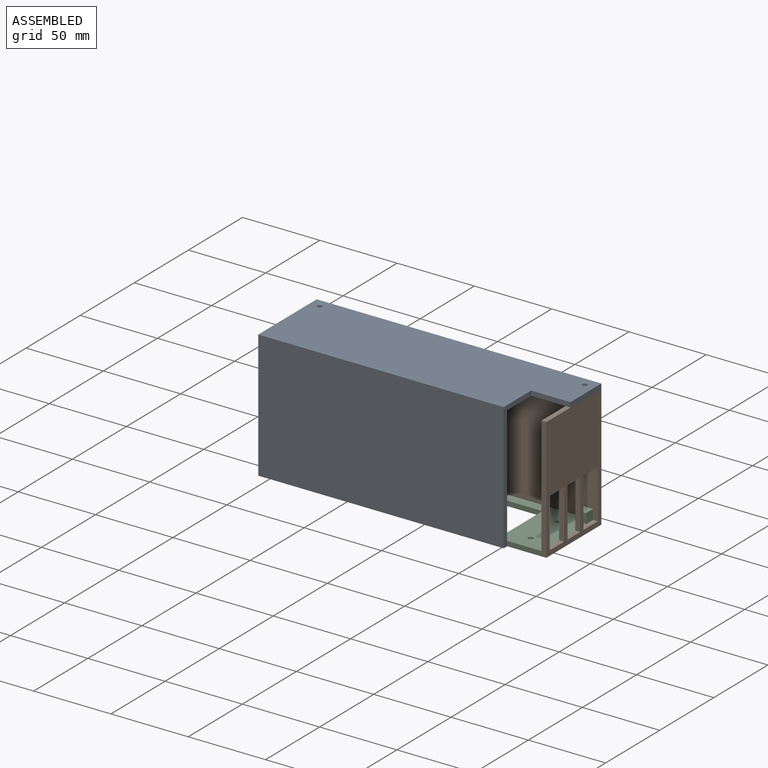
[diagram: assembled view]
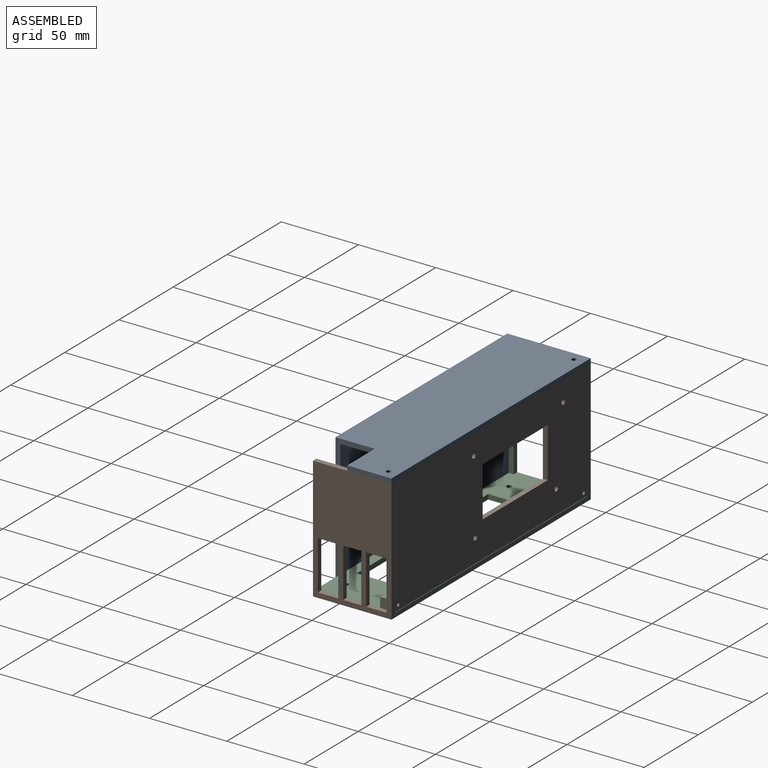
[diagram: assembled view, second angle]
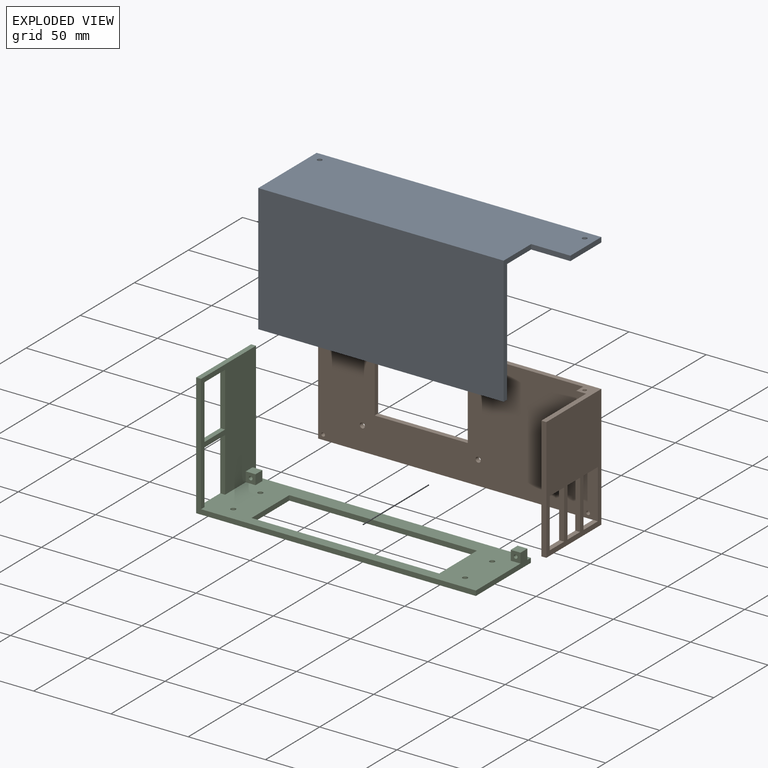
[diagram: exploded view]
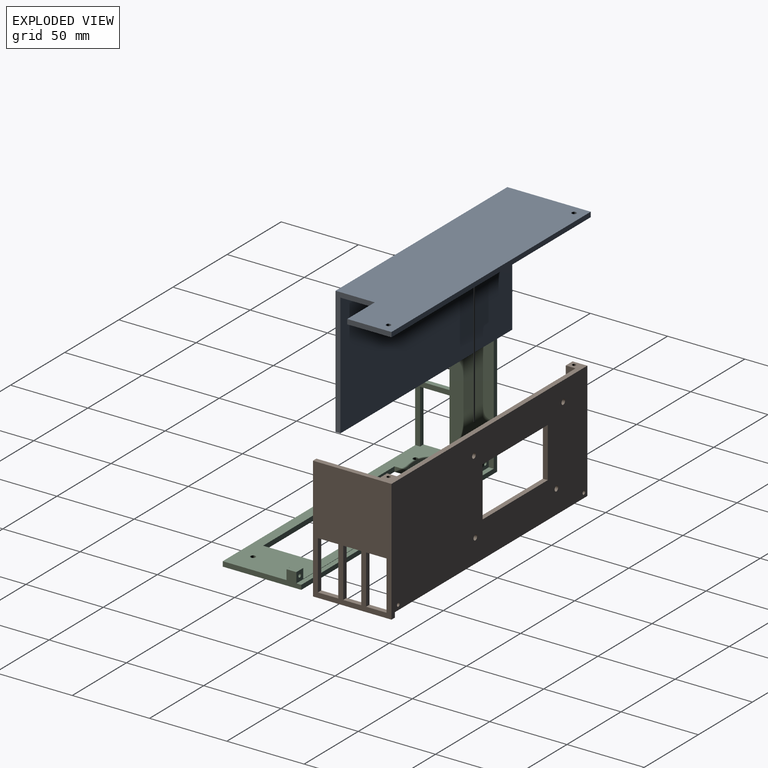
[diagram: exploded view, second angle]
ASSEMBLY  parts=3 mates=5
PART A: 12 faces, bbox 184.2x54x82.6 mm
  f0: plane 28.58x3.18mm, normal (1,0,0), area 90.7mm2, adj f2,f3,f4,f9
  f1: plane 158.75x82.55mm, normal (0,-1,0), area 13104.8mm2, adj f2,f5,f8,f11
  f2: plane 184.15x53.98mm, normal (0,0,1), area 9280.2mm2, adj f0,f1,f4,f5,f6,f7,f8,f9
  f3: plane 184.15x50.8mm, normal (0,0,-1), area 8776.2mm2, adj f0,f4,f5,f6,f7,f8,f9,f10
  f4: plane 184.15x3.18mm, normal (0,1,0), area 584.7mm2, adj f0,f2,f3,f5
  f5: plane 82.55x53.98mm, normal (-1,0,0), area 423.4mm2, adj f1,f2,f3,f4,f10,f11
  f6: cylinder r=1.5mm len=3.18mm, axis (0,0,1), area 29.9mm2, adj f2,f3
  f7: cylinder r=1.5mm len=3.18mm, axis (0,0,1), area 29.9mm2, adj f2,f3
  f8: plane 82.55x25.4mm, normal (1,0,0), area 332.7mm2, adj f1,f2,f3,f9,f10,f11
  f9: plane 25.4x3.18mm, normal (0,-1,0), area 80.6mm2, adj f0,f2,f3,f8
  f10: plane 158.75x79.38mm, normal (0,1,0), area 12600.8mm2, adj f3,f5,f8,f11
  f11: plane 158.75x3.18mm, normal (0,0,-1), area 504mm2, adj f1,f5,f8,f10
PART B: 38 faces, bbox 181x50.8x79.4 mm
  f0: plane 50.8x3.18mm, normal (0,0,-1), area 161.3mm2, adj f5,f6,f7,f9
  f1: plane 180.98x50.8mm, normal (0,0,1), area 797.4mm2, adj f5,f6,f7,f8,f9,f22,f24,f25
  f2: plane 13.23x3.18mm, normal (0,0,1), area 42mm2, adj f6,f7,f8,f20
  f3: plane 11.64x3.18mm, normal (0,0,1), area 37mm2, adj f6,f7,f14,f16
  f4: plane 13.23x3.18mm, normal (0,0,1), area 42mm2, adj f6,f7,f17,f19
  f5: plane 180.98x79.38mm, normal (0,1,0), area 11815.1mm2, adj f0,f1,f6,f7,f10,f11,f12,f13
  f6: plane 79.38x50.8mm, normal (1,0,0), area 2822.6mm2, adj f0,f1,f2,f3,f4,f5,f8,f9
  f7: plane 79.38x50.8mm, normal (-1,0,0), area 2540.3mm2, adj f0,f1,f2,f3,f4,f5,f8,f9
  f8: plane 180.98x76.2mm, normal (0,-1,0), area 11583.2mm2, adj f1,f2,f6,f7,f10,f11,f12,f13
  f9: plane 79.38x3.18mm, normal (0,-1,0), area 252mm2, adj f0,f1,f6,f7
  f10: cylinder r=1.65mm len=3.3mm, axis (0,-1,0), area 32.9mm2, adj f5,f8
  f11: cylinder r=1.65mm len=3.3mm, axis (0,-1,0), area 32.9mm2, adj f5,f8
  f12: cylinder r=1.65mm len=3.3mm, axis (0,-1,0), area 32.9mm2, adj f5,f8
  f13: cylinder r=1.65mm len=3.3mm, axis (0,-1,0), area 32.9mm2, adj f5,f8
  f14: plane 31.75x3.18mm, normal (0,1,0), area 100.8mm2, adj f3,f6,f7,f15
  f15: plane 11.64x3.18mm, normal (0,0,-1), area 37mm2, adj f6,f7,f14,f16
  f16: plane 31.75x3.18mm, normal (0,-1,0), area 100.8mm2, adj f3,f6,f7,f15
  f17: plane 31.75x3.18mm, normal (0,1,0), area 100.8mm2, adj f4,f6,f7,f18
  f18: plane 13.23x3.18mm, normal (0,0,-1), area 42mm2, adj f6,f7,f17,f19
  f19: plane 31.75x3.18mm, normal (0,-1,0), area 100.8mm2, adj f4,f6,f7,f18
  f20: plane 31.75x3.18mm, normal (0,1,0), area 100.8mm2, adj f2,f6,f7,f21
  f21: plane 13.23x3.18mm, normal (0,0,-1), area 42mm2, adj f6,f7,f8,f20
  f22: plane 6.35x6.35mm, normal (1,0,0), area 40.3mm2, adj f1,f8,f23,f24
  f23: plane 6.35x6.35mm, normal (0,0,-1), area 35.8mm2, adj f8,f22,f24,f28,f35
  f24: plane 6.35x6.35mm, normal (0,-1,0), area 40.3mm2, adj f1,f22,f23,f35
  f25: plane 6.35x6.35mm, normal (-1,0,0), area 40.3mm2, adj f1,f8,f26,f27
  f26: plane 6.35x6.35mm, normal (0,0,-1), area 35.8mm2, adj f7,f8,f25,f27,f29
  f27: plane 6.35x6.35mm, normal (0,-1,0), area 40.3mm2, adj f1,f7,f25,f26
  f28: cylinder r=1.2mm len=6.35mm, axis (0,0,1), area 47.9mm2, adj f1,f23
  f29: cylinder r=1.2mm len=6.35mm, axis (0,0,1), area 47.9mm2, adj f1,f26
  f30: plane 32.26x3.18mm, normal (1,0,0), area 102.4mm2, adj f5,f8,f31,f33
  f31: plane 60.2x3.18mm, normal (0,0,1), area 191.1mm2, adj f5,f8,f30,f32
  f32: plane 32.26x3.18mm, normal (-1,0,0), area 102.4mm2, adj f5,f8,f31,f33
  f33: plane 60.2x3.18mm, normal (0,0,-1), area 191.1mm2, adj f5,f8,f30,f32
  f34: plane 177.8x3.18mm, normal (0,0,-1), area 564.5mm2, adj f5,f7,f8,f35
  f35: plane 76.2x9.53mm, normal (-1,0,0), area 282.3mm2, adj f1,f5,f8,f23,f24,f34
  f36: cylinder r=1.2mm len=3.18mm, axis (0,-1,0), area 23.9mm2, adj f5,f8
  f37: cylinder r=1.2mm len=3.18mm, axis (0,-1,0), area 23.9mm2, adj f5,f8
PART C: 33 faces, bbox 181x50.8x79.4 mm
  f0: plane 6.35x6.35mm, normal (0,0,1), area 40.3mm2, adj f3,f6,f30,f32
  f1: plane 180.98x47.63mm, normal (0,0,1), area 4175.5mm2, adj f2,f3,f6,f7,f9,f11,f12,f13
  f2: plane 6.35x6.35mm, normal (-1,0,0), area 40.3mm2, adj f1,f28,f29,f32
  f3: plane 6.35x6.35mm, normal (1,0,0), area 40.3mm2, adj f0,f1,f30,f32
  f4: cylinder r=1.2mm len=6.35mm, axis (0,1,0), area 47.9mm2, adj f30,f32
  f5: cylinder r=1.2mm len=6.35mm, axis (0,1,0), area 47.9mm2, adj f29,f32
  f6: plane 76.44x50.8mm, normal (1,0,0), area 2500.8mm2, adj f0,f1,f7,f10,f15,f16,f17,f18
  f7: plane 180.98x79.38mm, normal (0,-1,0), area 816.5mm2, adj f1,f6,f8,f9,f15,f27
  f8: plane 180.98x50.8mm, normal (0,0,-1), area 4921.5mm2, adj f7,f9,f10,f11,f12,f13,f14,f23
  f9: plane 79.38x50.8mm, normal (-1,0,0), area 2701.6mm2, adj f1,f7,f8,f10,f15,f16,f17,f18
  f10: plane 180.98x79.38mm, normal (0,1,0), area 773.1mm2, adj f6,f8,f9,f15,f27,f31
  f11: cylinder r=1.6mm len=3.2mm, axis (0,0,1), area 31.9mm2, adj f1,f8
  f12: cylinder r=1.6mm len=3.2mm, axis (0,0,1), area 31.9mm2, adj f1,f8
  f13: cylinder r=1.6mm len=3.2mm, axis (0,0,1), area 31.9mm2, adj f1,f8
  f14: cylinder r=1.6mm len=3.2mm, axis (0,0,1), area 31.9mm2, adj f1,f8
  f15: plane 50.8x3.18mm, normal (0,0,1), area 161.3mm2, adj f6,f7,f9,f10
  f16: plane 34.93x3.18mm, normal (0,1,0), area 110.9mm2, adj f1,f6,f9,f18
  f17: plane 34.93x3.18mm, normal (0,-1,0), area 110.9mm2, adj f1,f6,f9,f18
  f18: plane 19.05x3.18mm, normal (0,0,-1), area 60.5mm2, adj f6,f9,f16,f17
  f19: plane 34.93x3.18mm, normal (0,-1,0), area 110.9mm2, adj f6,f9,f20,f22
  f20: plane 19.05x3.18mm, normal (0,0,1), area 60.5mm2, adj f6,f9,f19,f21
  f21: plane 34.93x3.18mm, normal (0,1,0), area 110.9mm2, adj f6,f9,f20,f22
  f22: plane 19.05x3.18mm, normal (0,0,-1), area 60.5mm2, adj f6,f9,f19,f21
  f23: plane 121.4x3.18mm, normal (0,-1,0), area 385.4mm2, adj f1,f8,f24,f26
  f24: plane 34.93x3.18mm, normal (1,0,0), area 110.9mm2, adj f1,f8,f23,f25
  f25: plane 121.4x3.18mm, normal (0,1,0), area 385.4mm2, adj f1,f8,f24,f26
  f26: plane 34.93x3.18mm, normal (-1,0,0), area 110.9mm2, adj f1,f8,f23,f25
  f27: plane 50.8x9.53mm, normal (1,0,0), area 200.8mm2, adj f1,f7,f8,f10,f28,f29,f31,f32
  f28: plane 6.35x6.35mm, normal (0,0,1), area 40.3mm2, adj f2,f27,f29,f32
  f29: plane 6.35x6.35mm, normal (0,-1,0), area 35.8mm2, adj f1,f2,f5,f27,f28
  f30: plane 6.35x6.35mm, normal (0,-1,0), area 35.8mm2, adj f0,f1,f3,f4,f6
  f31: plane 177.8x3.18mm, normal (0,0,1), area 564.5mm2, adj f6,f10,f27,f32
  f32: plane 177.8x6.59mm, normal (0,1,0), area 115mm2, adj f0,f1,f2,f3,f4,f5,f6,f27
PLACE A t=(30.64,-16.04,88.68)mm
PLACE B t=(-57.54,12.54,9.3)mm
PLACE C t=(-57.54,12.54,9.3)mm
MATE planar C.f10 <-> B.f5  axis (0,1,0) through (-90.93,37.94,23.23)mm
MATE cylindrical B.f28 <-> A.f6  axis (0,0,1) through (-147.16,31.59,88.68)mm
MATE fastened B.f29 <-> A.f7  axis (0,0,1) through (24.29,31.59,88.68)mm
MATE cylindrical C.f5 <-> B.f37  axis (0,-1,0) through (24.29,28.41,15.65)mm
MATE cylindrical C.f4 <-> B.f36  axis (0,-1,0) through (-147.16,28.41,15.65)mm
